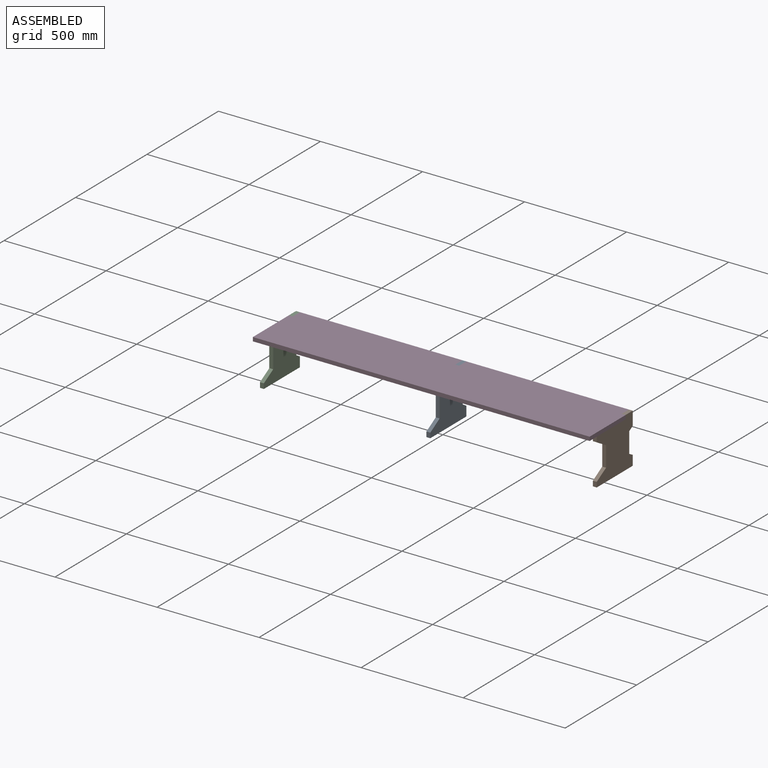
[diagram: assembled view]
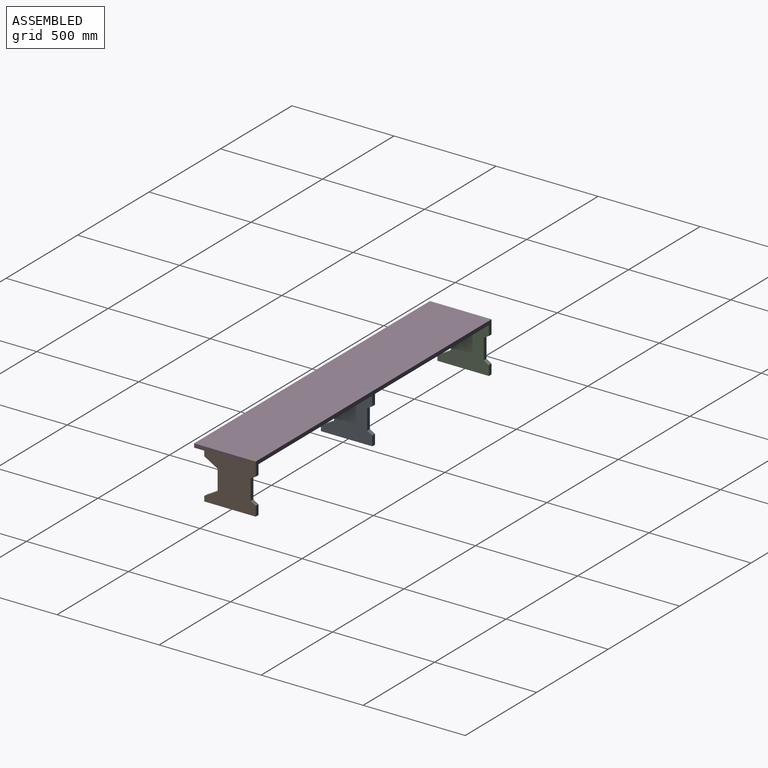
[diagram: assembled view, second angle]
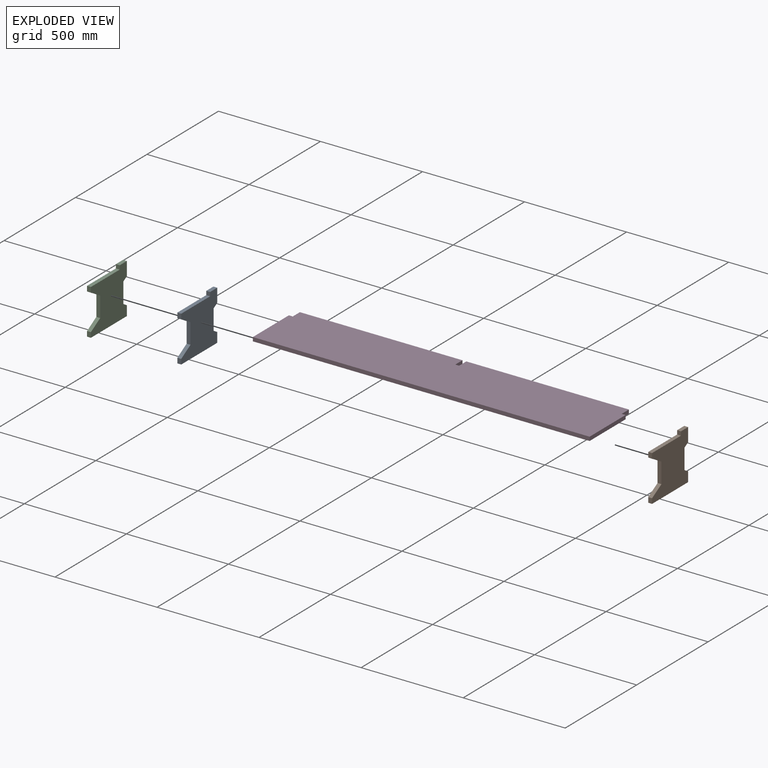
[diagram: exploded view]
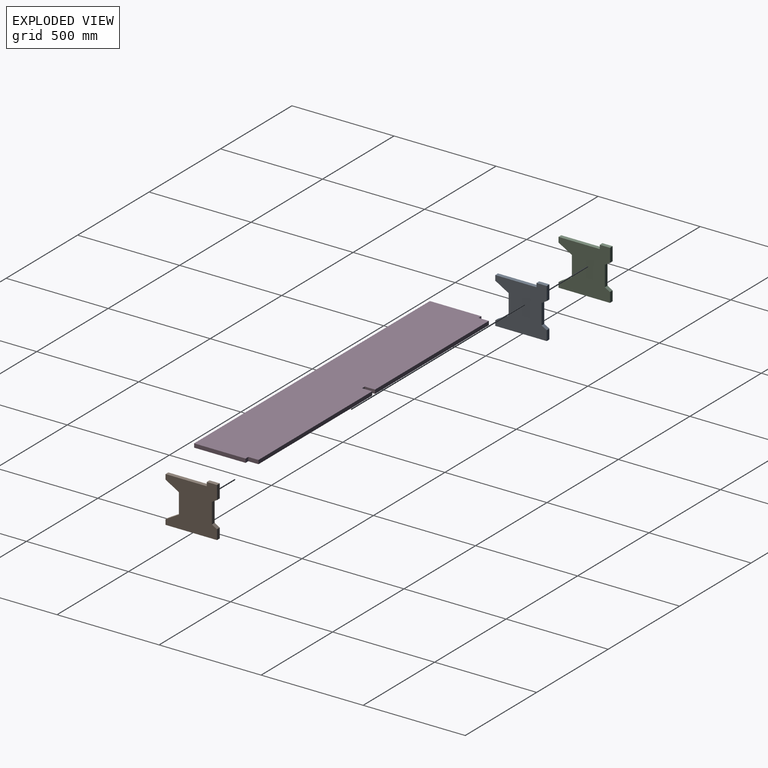
[diagram: exploded view, second angle]
ASSEMBLY  parts=4 mates=3
PART A: 16 faces, bbox 19x252x244 mm
  f0: plane 24.86x19mm, normal (0,-1,0), area 472.3mm2, adj f1,f4,f13,f14
  f1: plane 202x19mm, normal (0,0,1), area 3838mm2, adj f0,f2,f13,f14
  f2: plane 19x19mm, normal (0,-1,0), area 361mm2, adj f1,f3,f13,f14
  f3: plane 50x19mm, normal (0,0,1), area 950mm2, adj f2,f13,f14,f15
  f4: plane 65.2x37.64mm, normal (0,-0.5,-0.87), area 1430.4mm2, adj f0,f12,f13,f14
  f5: plane 25x19mm, normal (0,0.5,-0.87), area 548.5mm2, adj f6,f13,f14,f15
  f6: plane 100x19mm, normal (0,1,0), area 1900mm2, adj f5,f7,f13,f14
  f7: plane 25x19mm, normal (0,0.5,0.87), area 548.5mm2, adj f6,f8,f13,f14
  f8: plane 48.07x19mm, normal (0,1,0), area 913.3mm2, adj f7,f9,f13,f14
  f9: plane 252x19mm, normal (0,0,-1), area 4788mm2, adj f8,f10,f13,f14
  f10: plane 24.86x19mm, normal (0,-1,0), area 472.3mm2, adj f9,f11,f13,f14
  f11: plane 65.2x37.64mm, normal (0,-0.5,0.87), area 1430.4mm2, adj f10,f12,f13,f14
  f12: plane 100x19mm, normal (0,-1,0), area 1900mm2, adj f4,f11,f13,f14
  f13: plane 252x244mm, normal (-1,0,0), area 45814.8mm2, adj f0,f1,f2,f3,f4,f5,f6,f7
  f14: plane 252x244mm, normal (1,0,0), area 45814.8mm2, adj f0,f1,f2,f3,f4,f5,f6,f7
  f15: plane 67.07x19mm, normal (0,1,0), area 1274.3mm2, adj f3,f5,f13,f14
PART B: same geometry as A
PART C: same geometry as A
PART D: 14 faces, bbox 1650x302x19 mm
  f0: plane 50x19mm, normal (-1,0,0), area 950mm2, adj f1,f11,f12,f13
  f1: plane 796.5x19mm, normal (0,1,0), area 15133.5mm2, adj f0,f2,f12,f13
  f2: plane 50x19mm, normal (1,0,0), area 950mm2, adj f1,f3,f12,f13
  f3: plane 19x19mm, normal (0,1,0), area 361mm2, adj f2,f4,f12,f13
  f4: plane 50x19mm, normal (-1,0,0), area 950mm2, adj f3,f5,f12,f13
  f5: plane 796.5x19mm, normal (0,1,0), area 15133.5mm2, adj f4,f6,f12,f13
  f6: plane 50x19mm, normal (1,0,0), area 950mm2, adj f5,f7,f12,f13
  f7: plane 19x19mm, normal (0,1,0), area 361mm2, adj f6,f8,f12,f13
  f8: plane 252x19mm, normal (1,0,0), area 4788mm2, adj f7,f9,f12,f13
  f9: plane 1650x19mm, normal (0,-1,0), area 31350mm2, adj f8,f10,f12,f13
  f10: plane 252x19mm, normal (-1,0,0), area 4788mm2, adj f9,f11,f12,f13
  f11: plane 19x19mm, normal (0,1,0), area 361mm2, adj f0,f10,f12,f13
  f12: plane 1650x302mm, normal (0,0,-1), area 495450mm2, adj f0,f1,f2,f3,f4,f5,f6,f7
  f13: plane 1650x302mm, normal (0,0,1), area 495450mm2, adj f0,f1,f2,f3,f4,f5,f6,f7
PLACE A t=(815.5,0,0)mm
PLACE B t=(1631,0,0)mm
PLACE C at identity
PLACE D at identity
MATE fastened A.f14 <-> D.f4  axis (1,0,0) through (9.5,151,19)mm
MATE fastened B.f13 <-> D.f6  axis (-1,0,0) through (806,101,19)mm
MATE fastened C.f14 <-> D.f0  axis (1,0,0) through (-806,151,19)mm
